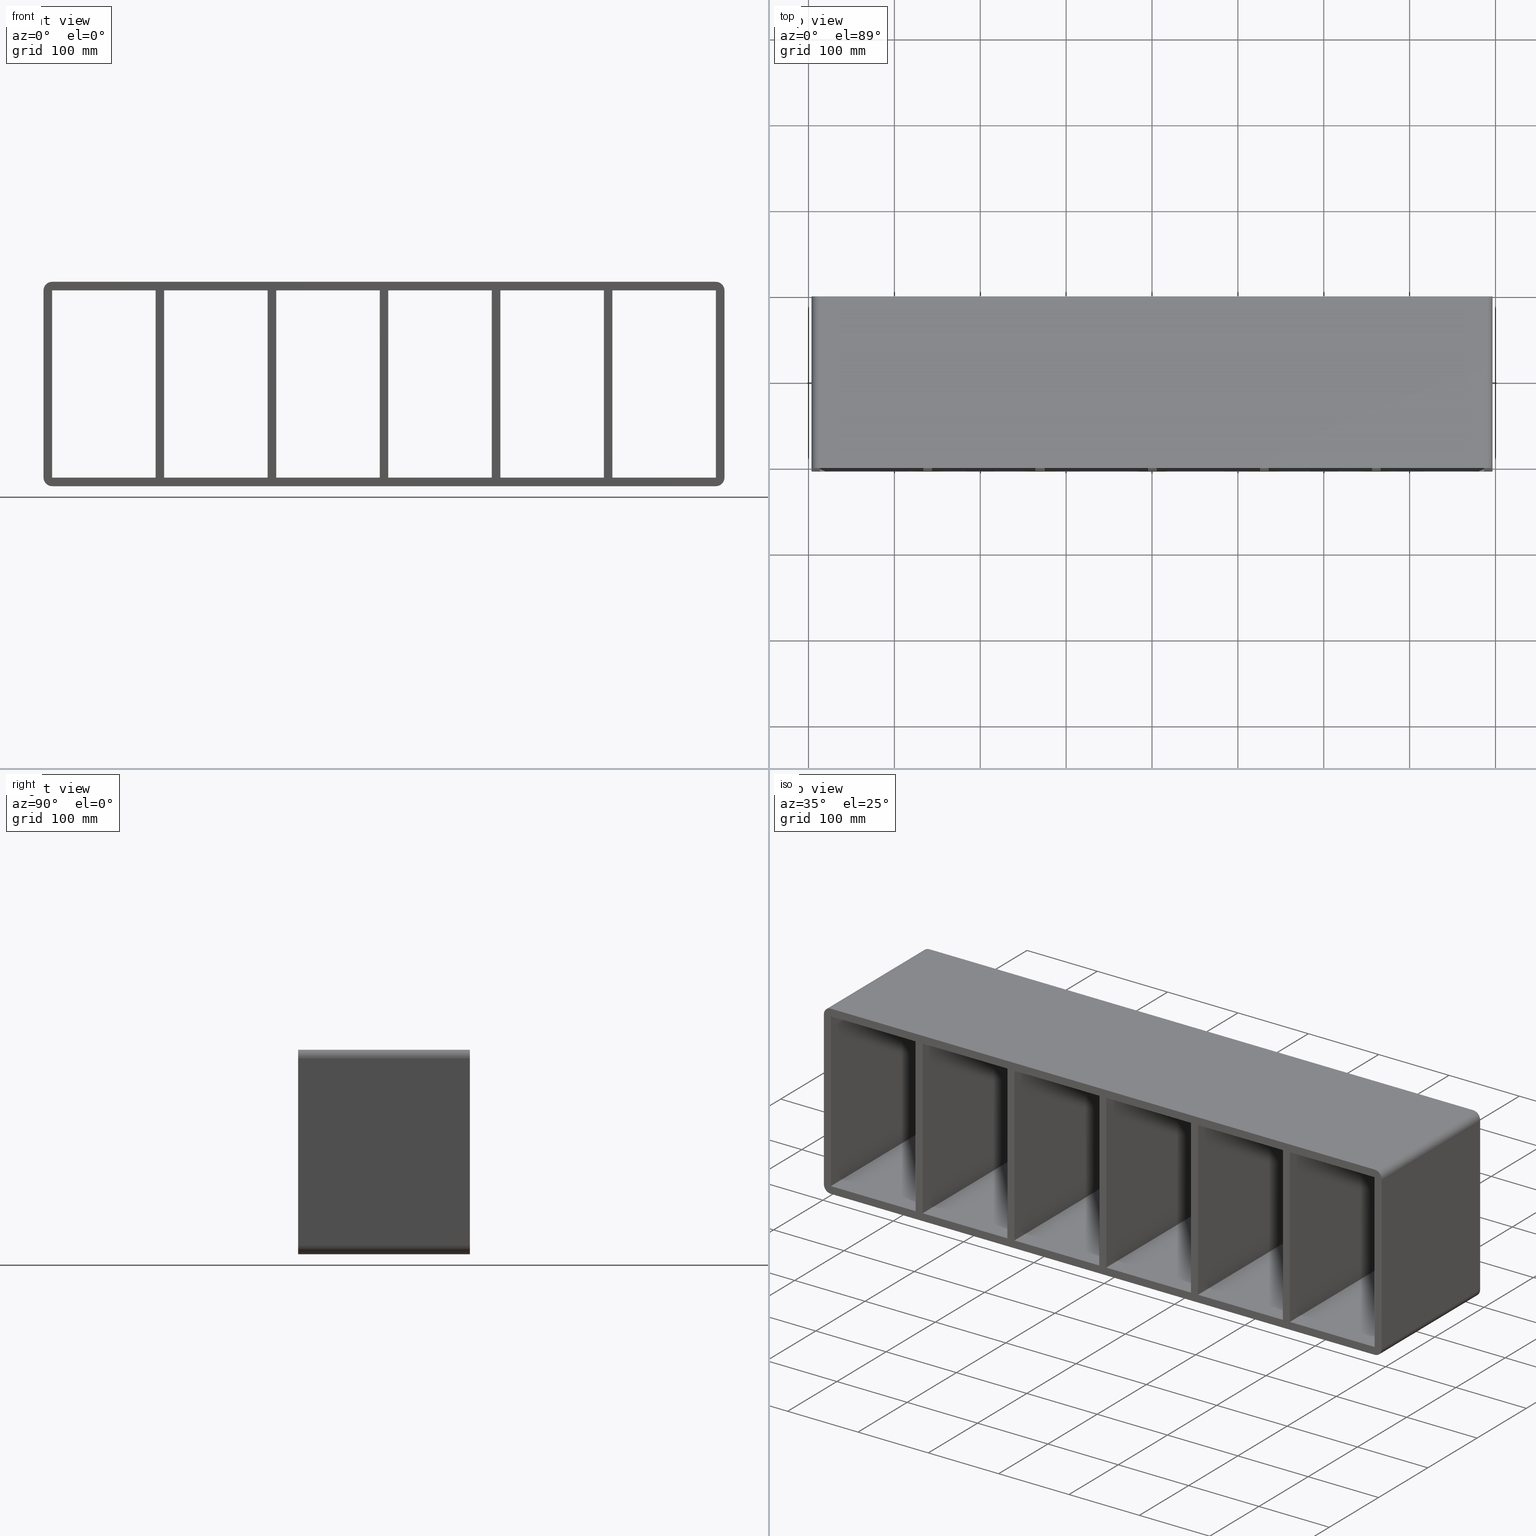
[diagram: canonical four-view strip — front | top / right | iso, engineering-drawing reading convention]
A machine part, canonical four-view strip (front | top / right | iso — engineering-drawing reading convention). The complete STEP part file that produces these views, byte-faithful:
ISO-10303-21;
HEADER;
/****************************************************************
 * Generated by software with PDElib inside                    *
 * PDElib Version v51a, created Wed 11/30/2011                  *
 * ITI Transcendata (http://www.transcendata.com/)              *
 ****************************************************************/
FILE_DESCRIPTION((''),'2;1');
FILE_NAME('C:\\RoxtecConfigurator\\CreatedFiles\\STEP\\SBTB6X6.stp','2013-02-26T13:25:47',(''),(''),'Autodesk Inventor 2013','Autodesk Inventor 2013','');
FILE_SCHEMA(('AUTOMOTIVE_DESIGN { 1 0 10303 214 1 1 1 1 }'));
ENDSEC;
DATA;
#5=APPLICATION_CONTEXT('automotive design');
#6=APPLICATION_PROTOCOL_DEFINITION('International Standard','automotive_design',2001,#5);
#7=PRODUCT_CONTEXT('',#5,'mechanical');
#8=PRODUCT('roxtec S_SF_G','roxtec S_SF_G',$,(#7));
#9=PRODUCT_RELATED_PRODUCT_CATEGORY('part',$,(#8));
#10=PRODUCT_DEFINITION_FORMATION('',$,#8);
#11=PRODUCT_DEFINITION_CONTEXT('part definition',#5,'design');
#12=PRODUCT_DEFINITION('',$,#10,#11);
#18=(NAMED_UNIT(*)PLANE_ANGLE_UNIT()SI_UNIT($,.RADIAN.));
#19=DIMENSIONAL_EXPONENTS(0.0,0.0,0.0,0.0,0.0,0.0,0.0);
#20=PLANE_ANGLE_MEASURE_WITH_UNIT(PLANE_ANGLE_MEASURE(0.0174532925),#18);
#24=(CONVERSION_BASED_UNIT('DEGREE',#20)NAMED_UNIT(#19)PLANE_ANGLE_UNIT());
#28=(NAMED_UNIT(*)SI_UNIT($,.STERADIAN.)SOLID_ANGLE_UNIT());
#32=(LENGTH_UNIT()NAMED_UNIT(*)SI_UNIT(.MILLI.,.METRE.));
#34=UNCERTAINTY_MEASURE_WITH_UNIT(LENGTH_MEASURE(0.01),#32,'DISTANCE_ACCURACY_VALUE','');
#36=(GEOMETRIC_REPRESENTATION_CONTEXT(3)GLOBAL_UNCERTAINTY_ASSIGNED_CONTEXT((#34))GLOBAL_UNIT_ASSIGNED_CONTEXT((#24,#28,#32))REPRESENTATION_CONTEXT('None','None'));
#37=AXIS2_PLACEMENT_3D('',#38,#39,#40);
#38=CARTESIAN_POINT('',(0.0,0.0,0.0));
#39=DIRECTION('',(0.0,0.0,1.0));
#40=DIRECTION('',(1.0,0.0,0.0));
#41=SHAPE_REPRESENTATION('',(#37),#36);
#42=PRODUCT_DEFINITION_SHAPE('','',#12);
#43=SHAPE_DEFINITION_REPRESENTATION(#42,#41);
#49=(NAMED_UNIT(*)PLANE_ANGLE_UNIT()SI_UNIT($,.RADIAN.));
#50=DIMENSIONAL_EXPONENTS(0.0,0.0,0.0,0.0,0.0,0.0,0.0);
#51=PLANE_ANGLE_MEASURE_WITH_UNIT(PLANE_ANGLE_MEASURE(0.0174532925),#49);
#55=(CONVERSION_BASED_UNIT('DEGREE',#51)NAMED_UNIT(#50)PLANE_ANGLE_UNIT());
#59=(NAMED_UNIT(*)SI_UNIT($,.STERADIAN.)SOLID_ANGLE_UNIT());
#63=(LENGTH_UNIT()NAMED_UNIT(*)SI_UNIT(.MILLI.,.METRE.));
#65=UNCERTAINTY_MEASURE_WITH_UNIT(LENGTH_MEASURE(0.000001),#63,'DISTANCE_ACCURACY_VALUE','');
#67=(GEOMETRIC_REPRESENTATION_CONTEXT(3)GLOBAL_UNCERTAINTY_ASSIGNED_CONTEXT((#65))GLOBAL_UNIT_ASSIGNED_CONTEXT((#55,#59,#63))REPRESENTATION_CONTEXT('','3D'));
#68=CARTESIAN_POINT('',(255.99999999999883,-3.0,-109.0));
#69=DIRECTION('',(-1.0,0.0,0.0));
#70=DIRECTION('',(0.0,0.0,1.0));
#71=AXIS2_PLACEMENT_3D('',#68,#69,#70);
#72=PLANE('',#71);
#73=CARTESIAN_POINT('',(255.99999999999883,-3.0,-109.0));
#74=VERTEX_POINT('',#73);
#75=CARTESIAN_POINT('',(255.99999999999878,-3.0,108.99999999999997));
#76=VERTEX_POINT('',#75);
#77=CARTESIAN_POINT('',(255.99999999999883,-3.0,-109.0));
#78=DIRECTION('',(0.0,0.0,1.0));
#79=VECTOR('',#78,217.99999999999997);
#80=LINE('',#77,#79);
#81=EDGE_CURVE('',#74,#76,#80,.T.);
#82=ORIENTED_EDGE('',*,*,#81,.T.);
#83=CARTESIAN_POINT('',(255.99999999999878,197.0,108.99999999999997));
#84=VERTEX_POINT('',#83);
#85=CARTESIAN_POINT('',(255.99999999999878,196.99999999999997,108.99999999999999));
#86=DIRECTION('',(0.0,-1.0,0.0));
#87=VECTOR('',#86,199.99999999999997);
#88=LINE('',#85,#87);
#89=EDGE_CURVE('',#84,#76,#88,.T.);
#90=ORIENTED_EDGE('',*,*,#89,.F.);
#91=CARTESIAN_POINT('',(255.99999999999883,197.0,-109.0));
#92=VERTEX_POINT('',#91);
#93=CARTESIAN_POINT('',(255.99999999999883,197.0,-109.0));
#94=DIRECTION('',(0.0,0.0,1.0));
#95=VECTOR('',#94,217.99999999999997);
#96=LINE('',#93,#95);
#97=EDGE_CURVE('',#92,#84,#96,.T.);
#98=ORIENTED_EDGE('',*,*,#97,.F.);
#99=CARTESIAN_POINT('',(255.99999999999881,-3.0,-109.0));
#100=DIRECTION('',(0.0,1.0,0.0));
#101=VECTOR('',#100,199.99999999999997);
#102=LINE('',#99,#101);
#103=EDGE_CURVE('',#74,#92,#102,.T.);
#104=ORIENTED_EDGE('',*,*,#103,.F.);
#105=EDGE_LOOP('',(#82,#90,#98,#104));
#106=FACE_OUTER_BOUND('',#105,.T.);
#107=ADVANCED_FACE('',(#106),#72,.T.);
#108=CARTESIAN_POINT('',(266.00000000001461,-3.0,108.99999999999997));
#109=DIRECTION('',(1.0,0.0,0.0));
#110=DIRECTION('',(0.0,0.0,-1.0));
#111=AXIS2_PLACEMENT_3D('',#108,#109,#110);
#112=PLANE('',#111);
#113=CARTESIAN_POINT('',(266.00000000001461,-3.0,108.99999999999997));
#114=VERTEX_POINT('',#113);
#115=CARTESIAN_POINT('',(266.00000000001461,-3.0,-108.99999999997137));
#116=VERTEX_POINT('',#115);
#117=CARTESIAN_POINT('',(266.00000000001461,-3.0,108.99999999999997));
#118=DIRECTION('',(0.0,0.0,-1.0));
#119=VECTOR('',#118,217.99999999997135);
#120=LINE('',#117,#119);
#121=EDGE_CURVE('',#114,#116,#120,.T.);
#122=ORIENTED_EDGE('',*,*,#121,.T.);
#123=CARTESIAN_POINT('',(266.00000000001461,197.0,-108.99999999997137));
#124=VERTEX_POINT('',#123);
#125=CARTESIAN_POINT('',(266.00000000001455,196.99999999999997,-109.0));
#126=DIRECTION('',(0.0,-1.0,0.0));
#127=VECTOR('',#126,199.99999999999997);
#128=LINE('',#125,#127);
#129=EDGE_CURVE('',#124,#116,#128,.T.);
#130=ORIENTED_EDGE('',*,*,#129,.F.);
#131=CARTESIAN_POINT('',(266.00000000001461,197.0,108.99999999999997));
#132=VERTEX_POINT('',#131);
#133=CARTESIAN_POINT('',(266.00000000001461,197.0,108.99999999999997));
#134=DIRECTION('',(0.0,0.0,-1.0));
#135=VECTOR('',#134,217.99999999997135);
#136=LINE('',#133,#135);
#137=EDGE_CURVE('',#132,#124,#136,.T.);
#138=ORIENTED_EDGE('',*,*,#137,.F.);
#139=CARTESIAN_POINT('',(266.00000000001455,-3.0,108.99999999999999));
#140=DIRECTION('',(0.0,1.0,0.0));
#141=VECTOR('',#140,199.99999999999997);
#142=LINE('',#139,#141);
#143=EDGE_CURVE('',#114,#132,#142,.T.);
#144=ORIENTED_EDGE('',*,*,#143,.F.);
#145=EDGE_LOOP('',(#122,#130,#138,#144));
#146=FACE_OUTER_BOUND('',#145,.T.);
#147=ADVANCED_FACE('',(#146),#112,.T.);
#148=CARTESIAN_POINT('',(125.49999999999883,-3.0,-109.0));
#149=DIRECTION('',(-1.0,0.0,0.0));
#150=DIRECTION('',(0.0,0.0,1.0));
#151=AXIS2_PLACEMENT_3D('',#148,#149,#150);
#152=PLANE('',#151);
#153=CARTESIAN_POINT('',(125.49999999999883,-3.0,-109.0));
#154=VERTEX_POINT('',#153);
#155=CARTESIAN_POINT('',(125.49999999999876,-3.0,108.99999999999997));
#156=VERTEX_POINT('',#155);
#157=CARTESIAN_POINT('',(125.49999999999883,-3.0,-109.0));
#158=DIRECTION('',(0.0,0.0,1.0));
#159=VECTOR('',#158,217.99999999999997);
#160=LINE('',#157,#159);
#161=EDGE_CURVE('',#154,#156,#160,.T.);
#162=ORIENTED_EDGE('',*,*,#161,.T.);
#163=CARTESIAN_POINT('',(125.49999999999876,197.0,108.99999999999997));
#164=VERTEX_POINT('',#163);
#165=CARTESIAN_POINT('',(125.49999999999876,196.99999999999997,108.99999999999999));
#166=DIRECTION('',(0.0,-1.0,0.0));
#167=VECTOR('',#166,199.99999999999997);
#168=LINE('',#165,#167);
#169=EDGE_CURVE('',#164,#156,#168,.T.);
#170=ORIENTED_EDGE('',*,*,#169,.F.);
#171=CARTESIAN_POINT('',(125.49999999999883,197.0,-109.0));
#172=VERTEX_POINT('',#171);
#173=CARTESIAN_POINT('',(125.49999999999883,197.0,-109.0));
#174=DIRECTION('',(0.0,0.0,1.0));
#175=VECTOR('',#174,217.99999999999997);
#176=LINE('',#173,#175);
#177=EDGE_CURVE('',#172,#164,#176,.T.);
#178=ORIENTED_EDGE('',*,*,#177,.F.);
#179=CARTESIAN_POINT('',(125.49999999999883,-3.0,-109.0));
#180=DIRECTION('',(0.0,1.0,0.0));
#181=VECTOR('',#180,199.99999999999997);
#182=LINE('',#179,#181);
#183=EDGE_CURVE('',#154,#172,#182,.T.);
#184=ORIENTED_EDGE('',*,*,#183,.F.);
#185=EDGE_LOOP('',(#162,#170,#178,#184));
#186=FACE_OUTER_BOUND('',#185,.T.);
#187=ADVANCED_FACE('',(#186),#152,.T.);
#188=CARTESIAN_POINT('',(135.50000000001461,-3.0,108.99999999999997));
#189=DIRECTION('',(1.0,0.0,0.0));
#190=DIRECTION('',(0.0,0.0,-1.0));
#191=AXIS2_PLACEMENT_3D('',#188,#189,#190);
#192=PLANE('',#191);
#193=CARTESIAN_POINT('',(135.50000000001461,-3.0,108.99999999999997));
#194=VERTEX_POINT('',#193);
#195=CARTESIAN_POINT('',(135.50000000001461,-3.0,-108.99999999997137));
#196=VERTEX_POINT('',#195);
#197=CARTESIAN_POINT('',(135.50000000001461,-3.0,108.99999999999997));
#198=DIRECTION('',(0.0,0.0,-1.0));
#199=VECTOR('',#198,217.99999999997135);
#200=LINE('',#197,#199);
#201=EDGE_CURVE('',#194,#196,#200,.T.);
#202=ORIENTED_EDGE('',*,*,#201,.T.);
#203=CARTESIAN_POINT('',(135.50000000001461,197.0,-108.99999999997137));
#204=VERTEX_POINT('',#203);
#205=CARTESIAN_POINT('',(135.50000000001461,196.99999999999997,-109.0));
#206=DIRECTION('',(0.0,-1.0,0.0));
#207=VECTOR('',#206,199.99999999999997);
#208=LINE('',#205,#207);
#209=EDGE_CURVE('',#204,#196,#208,.T.);
#210=ORIENTED_EDGE('',*,*,#209,.F.);
#211=CARTESIAN_POINT('',(135.50000000001461,197.0,108.99999999999997));
#212=VERTEX_POINT('',#211);
#213=CARTESIAN_POINT('',(135.50000000001461,197.0,108.99999999999997));
#214=DIRECTION('',(0.0,0.0,-1.0));
#215=VECTOR('',#214,217.99999999997135);
#216=LINE('',#213,#215);
#217=EDGE_CURVE('',#212,#204,#216,.T.);
#218=ORIENTED_EDGE('',*,*,#217,.F.);
#219=CARTESIAN_POINT('',(135.50000000001461,-3.0,108.99999999999999));
#220=DIRECTION('',(0.0,1.0,0.0));
#221=VECTOR('',#220,199.99999999999997);
#222=LINE('',#219,#221);
#223=EDGE_CURVE('',#194,#212,#222,.T.);
#224=ORIENTED_EDGE('',*,*,#223,.F.);
#225=EDGE_LOOP('',(#202,#210,#218,#224));
#226=FACE_OUTER_BOUND('',#225,.T.);
#227=ADVANCED_FACE('',(#226),#192,.T.);
#228=CARTESIAN_POINT('',(-5.000000000001208,-3.0,-109.0));
#229=DIRECTION('',(-1.0,0.0,0.0));
#230=DIRECTION('',(0.0,0.0,1.0));
#231=AXIS2_PLACEMENT_3D('',#228,#229,#230);
#232=PLANE('',#231);
#233=CARTESIAN_POINT('',(-5.000000000001208,-3.0,-109.0));
#234=VERTEX_POINT('',#233);
#235=CARTESIAN_POINT('',(-5.000000000001279,-3.0,108.99999999999997));
#236=VERTEX_POINT('',#235);
#237=CARTESIAN_POINT('',(-5.000000000001208,-3.0,-109.0));
#238=DIRECTION('',(0.0,0.0,1.0));
#239=VECTOR('',#238,217.99999999999997);
#240=LINE('',#237,#239);
#241=EDGE_CURVE('',#234,#236,#240,.T.);
#242=ORIENTED_EDGE('',*,*,#241,.T.);
#243=CARTESIAN_POINT('',(-5.000000000001279,197.0,108.99999999999997));
#244=VERTEX_POINT('',#243);
#245=CARTESIAN_POINT('',(-5.000000000001279,196.99999999999997,108.99999999999999));
#246=DIRECTION('',(0.0,-1.0,0.0));
#247=VECTOR('',#246,199.99999999999997);
#248=LINE('',#245,#247);
#249=EDGE_CURVE('',#244,#236,#248,.T.);
#250=ORIENTED_EDGE('',*,*,#249,.F.);
#251=CARTESIAN_POINT('',(-5.000000000001208,197.0,-109.0));
#252=VERTEX_POINT('',#251);
#253=CARTESIAN_POINT('',(-5.000000000001208,197.0,-109.0));
#254=DIRECTION('',(0.0,0.0,1.0));
#255=VECTOR('',#254,217.99999999999997);
#256=LINE('',#253,#255);
#257=EDGE_CURVE('',#252,#244,#256,.T.);
#258=ORIENTED_EDGE('',*,*,#257,.F.);
#259=CARTESIAN_POINT('',(-5.000000000001208,-3.0,-109.0));
#260=DIRECTION('',(0.0,1.0,0.0));
#261=VECTOR('',#260,199.99999999999997);
#262=LINE('',#259,#261);
#263=EDGE_CURVE('',#234,#252,#262,.T.);
#264=ORIENTED_EDGE('',*,*,#263,.F.);
#265=EDGE_LOOP('',(#242,#250,#258,#264));
#266=FACE_OUTER_BOUND('',#265,.T.);
#267=ADVANCED_FACE('',(#266),#232,.T.);
#268=CARTESIAN_POINT('',(5.000000000014566,-3.0,108.99999999999997));
#269=DIRECTION('',(1.0,0.0,0.0));
#270=DIRECTION('',(0.0,0.0,-1.0));
#271=AXIS2_PLACEMENT_3D('',#268,#269,#270);
#272=PLANE('',#271);
#273=CARTESIAN_POINT('',(5.000000000014566,-3.0,108.99999999999997));
#274=VERTEX_POINT('',#273);
#275=CARTESIAN_POINT('',(5.000000000014566,-3.0,-108.99999999997137));
#276=VERTEX_POINT('',#275);
#277=CARTESIAN_POINT('',(5.000000000014566,-3.0,108.99999999999997));
#278=DIRECTION('',(0.0,0.0,-1.0));
#279=VECTOR('',#278,217.99999999997135);
#280=LINE('',#277,#279);
#281=EDGE_CURVE('',#274,#276,#280,.T.);
#282=ORIENTED_EDGE('',*,*,#281,.T.);
#283=CARTESIAN_POINT('',(5.000000000014566,197.0,-108.99999999997137));
#284=VERTEX_POINT('',#283);
#285=CARTESIAN_POINT('',(5.000000000014566,196.99999999999997,-109.0));
#286=DIRECTION('',(0.0,-1.0,0.0));
#287=VECTOR('',#286,199.99999999999997);
#288=LINE('',#285,#287);
#289=EDGE_CURVE('',#284,#276,#288,.T.);
#290=ORIENTED_EDGE('',*,*,#289,.F.);
#291=CARTESIAN_POINT('',(5.000000000014566,197.0,108.99999999999997));
#292=VERTEX_POINT('',#291);
#293=CARTESIAN_POINT('',(5.000000000014566,197.0,108.99999999999997));
#294=DIRECTION('',(0.0,0.0,-1.0));
#295=VECTOR('',#294,217.99999999997135);
#296=LINE('',#293,#295);
#297=EDGE_CURVE('',#292,#284,#296,.T.);
#298=ORIENTED_EDGE('',*,*,#297,.F.);
#299=CARTESIAN_POINT('',(5.000000000014566,-3.0,108.99999999999999));
#300=DIRECTION('',(0.0,1.0,0.0));
#301=VECTOR('',#300,199.99999999999997);
#302=LINE('',#299,#301);
#303=EDGE_CURVE('',#274,#292,#302,.T.);
#304=ORIENTED_EDGE('',*,*,#303,.F.);
#305=EDGE_LOOP('',(#282,#290,#298,#304));
#306=FACE_OUTER_BOUND('',#305,.T.);
#307=ADVANCED_FACE('',(#306),#272,.T.);
#308=CARTESIAN_POINT('',(-135.50000000000122,-3.0,-109.0));
#309=DIRECTION('',(-1.0,0.0,0.0));
#310=DIRECTION('',(0.0,0.0,1.0));
#311=AXIS2_PLACEMENT_3D('',#308,#309,#310);
#312=PLANE('',#311);
#313=CARTESIAN_POINT('',(-135.50000000000122,-3.0,-109.0));
#314=VERTEX_POINT('',#313);
#315=CARTESIAN_POINT('',(-135.50000000000128,-3.0,108.99999999999997));
#316=VERTEX_POINT('',#315);
#317=CARTESIAN_POINT('',(-135.50000000000122,-3.0,-109.0));
#318=DIRECTION('',(0.0,0.0,1.0));
#319=VECTOR('',#318,217.99999999999997);
#320=LINE('',#317,#319);
#321=EDGE_CURVE('',#314,#316,#320,.T.);
#322=ORIENTED_EDGE('',*,*,#321,.T.);
#323=CARTESIAN_POINT('',(-135.50000000000128,197.0,108.99999999999997));
#324=VERTEX_POINT('',#323);
#325=CARTESIAN_POINT('',(-135.50000000000131,196.99999999999997,108.99999999999999));
#326=DIRECTION('',(0.0,-1.0,0.0));
#327=VECTOR('',#326,199.99999999999997);
#328=LINE('',#325,#327);
#329=EDGE_CURVE('',#324,#316,#328,.T.);
#330=ORIENTED_EDGE('',*,*,#329,.F.);
#331=CARTESIAN_POINT('',(-135.50000000000122,197.0,-109.0));
#332=VERTEX_POINT('',#331);
#333=CARTESIAN_POINT('',(-135.50000000000122,197.0,-109.0));
#334=DIRECTION('',(0.0,0.0,1.0));
#335=VECTOR('',#334,217.99999999999997);
#336=LINE('',#333,#335);
#337=EDGE_CURVE('',#332,#324,#336,.T.);
#338=ORIENTED_EDGE('',*,*,#337,.F.);
#339=CARTESIAN_POINT('',(-135.50000000000122,-3.0,-109.0));
#340=DIRECTION('',(0.0,1.0,0.0));
#341=VECTOR('',#340,199.99999999999997);
#342=LINE('',#339,#341);
#343=EDGE_CURVE('',#314,#332,#342,.T.);
#344=ORIENTED_EDGE('',*,*,#343,.F.);
#345=EDGE_LOOP('',(#322,#330,#338,#344));
#346=FACE_OUTER_BOUND('',#345,.T.);
#347=ADVANCED_FACE('',(#346),#312,.T.);
#348=CARTESIAN_POINT('',(-125.49999999998545,-3.0,108.99999999999997));
#349=DIRECTION('',(1.0,0.0,0.0));
#350=DIRECTION('',(0.0,0.0,-1.0));
#351=AXIS2_PLACEMENT_3D('',#348,#349,#350);
#352=PLANE('',#351);
#353=CARTESIAN_POINT('',(-125.49999999998545,-3.0,108.99999999999997));
#354=VERTEX_POINT('',#353);
#355=CARTESIAN_POINT('',(-125.49999999998545,-3.0,-108.99999999997137));
#356=VERTEX_POINT('',#355);
#357=CARTESIAN_POINT('',(-125.49999999998545,-3.0,108.99999999999997));
#358=DIRECTION('',(0.0,0.0,-1.0));
#359=VECTOR('',#358,217.99999999997135);
#360=LINE('',#357,#359);
#361=EDGE_CURVE('',#354,#356,#360,.T.);
#362=ORIENTED_EDGE('',*,*,#361,.T.);
#363=CARTESIAN_POINT('',(-125.49999999998545,197.0,-108.99999999997137));
#364=VERTEX_POINT('',#363);
#365=CARTESIAN_POINT('',(-125.49999999998546,196.99999999999997,-109.0));
#366=DIRECTION('',(0.0,-1.0,0.0));
#367=VECTOR('',#366,199.99999999999997);
#368=LINE('',#365,#367);
#369=EDGE_CURVE('',#364,#356,#368,.T.);
#370=ORIENTED_EDGE('',*,*,#369,.F.);
#371=CARTESIAN_POINT('',(-125.49999999998545,197.0,108.99999999999997));
#372=VERTEX_POINT('',#371);
#373=CARTESIAN_POINT('',(-125.49999999998545,197.0,108.99999999999997));
#374=DIRECTION('',(0.0,0.0,-1.0));
#375=VECTOR('',#374,217.99999999997135);
#376=LINE('',#373,#375);
#377=EDGE_CURVE('',#372,#364,#376,.T.);
#378=ORIENTED_EDGE('',*,*,#377,.F.);
#379=CARTESIAN_POINT('',(-125.49999999998546,-3.0,108.99999999999999));
#380=DIRECTION('',(0.0,1.0,0.0));
#381=VECTOR('',#380,199.99999999999997);
#382=LINE('',#379,#381);
#383=EDGE_CURVE('',#354,#372,#382,.T.);
#384=ORIENTED_EDGE('',*,*,#383,.F.);
#385=EDGE_LOOP('',(#362,#370,#378,#384));
#386=FACE_OUTER_BOUND('',#385,.T.);
#387=ADVANCED_FACE('',(#386),#352,.T.);
#388=CARTESIAN_POINT('',(386.50000000000006,0.0,-109.0));
#389=DIRECTION('',(0.0,0.0,-1.0));
#390=DIRECTION('',(-1.0,0.0,0.0));
#391=AXIS2_PLACEMENT_3D('',#388,#389,#390);
#392=PLANE('',#391);
#393=ORIENTED_EDGE('',*,*,#343,.T.);
#394=CARTESIAN_POINT('',(-255.99999999998545,197.0,-108.99999999997137));
#395=VERTEX_POINT('',#394);
#396=CARTESIAN_POINT('',(-255.99999999998542,197.0,-109.0));
#397=DIRECTION('',(1.0,0.0,0.0));
#398=VECTOR('',#397,120.4999999999842);
#399=LINE('',#396,#398);
#400=EDGE_CURVE('',#395,#332,#399,.T.);
#401=ORIENTED_EDGE('',*,*,#400,.F.);
#402=CARTESIAN_POINT('',(-255.99999999998545,-3.0,-108.99999999997137));
#403=VERTEX_POINT('',#402);
#404=CARTESIAN_POINT('',(-255.99999999998545,196.99999999999997,-109.0));
#405=DIRECTION('',(0.0,-1.0,0.0));
#406=VECTOR('',#405,199.99999999999997);
#407=LINE('',#404,#406);
#408=EDGE_CURVE('',#395,#403,#407,.T.);
#409=ORIENTED_EDGE('',*,*,#408,.T.);
#410=CARTESIAN_POINT('',(-135.50000000000122,-3.0,-109.0));
#411=DIRECTION('',(-1.0,0.0,0.0));
#412=VECTOR('',#411,120.4999999999842);
#413=LINE('',#410,#412);
#414=EDGE_CURVE('',#314,#403,#413,.T.);
#415=ORIENTED_EDGE('',*,*,#414,.F.);
#416=EDGE_LOOP('',(#393,#401,#409,#415));
#417=FACE_OUTER_BOUND('',#416,.T.);
#418=ADVANCED_FACE('',(#417),#392,.F.);
#419=CARTESIAN_POINT('',(386.50000000000006,0.0,-109.0));
#420=DIRECTION('',(0.0,0.0,-1.0));
#421=DIRECTION('',(-1.0,0.0,0.0));
#422=AXIS2_PLACEMENT_3D('',#419,#420,#421);
#423=PLANE('',#422);
#424=ORIENTED_EDGE('',*,*,#263,.T.);
#425=CARTESIAN_POINT('',(-125.49999999998542,197.0,-109.0));
#426=DIRECTION('',(1.0,0.0,0.0));
#427=VECTOR('',#426,120.4999999999842);
#428=LINE('',#425,#427);
#429=EDGE_CURVE('',#364,#252,#428,.T.);
#430=ORIENTED_EDGE('',*,*,#429,.F.);
#431=ORIENTED_EDGE('',*,*,#369,.T.);
#432=CARTESIAN_POINT('',(-5.000000000001222,-3.0,-109.0));
#433=DIRECTION('',(-1.0,0.0,0.0));
#434=VECTOR('',#433,120.4999999999842);
#435=LINE('',#432,#434);
#436=EDGE_CURVE('',#234,#356,#435,.T.);
#437=ORIENTED_EDGE('',*,*,#436,.F.);
#438=EDGE_LOOP('',(#424,#430,#431,#437));
#439=FACE_OUTER_BOUND('',#438,.T.);
#440=ADVANCED_FACE('',(#439),#423,.F.);
#441=CARTESIAN_POINT('',(386.50000000000006,0.0,-109.0));
#442=DIRECTION('',(0.0,0.0,-1.0));
#443=DIRECTION('',(-1.0,0.0,0.0));
#444=AXIS2_PLACEMENT_3D('',#441,#442,#443);
#445=PLANE('',#444);
#446=ORIENTED_EDGE('',*,*,#183,.T.);
#447=CARTESIAN_POINT('',(5.00000000001458,197.0,-109.0));
#448=DIRECTION('',(1.0,0.0,0.0));
#449=VECTOR('',#448,120.49999999998425);
#450=LINE('',#447,#449);
#451=EDGE_CURVE('',#284,#172,#450,.T.);
#452=ORIENTED_EDGE('',*,*,#451,.F.);
#453=ORIENTED_EDGE('',*,*,#289,.T.);
#454=CARTESIAN_POINT('',(125.49999999999883,-3.0,-109.0));
#455=DIRECTION('',(-1.0,0.0,0.0));
#456=VECTOR('',#455,120.49999999998425);
#457=LINE('',#454,#456);
#458=EDGE_CURVE('',#154,#276,#457,.T.);
#459=ORIENTED_EDGE('',*,*,#458,.F.);
#460=EDGE_LOOP('',(#446,#452,#453,#459));
#461=FACE_OUTER_BOUND('',#460,.T.);
#462=ADVANCED_FACE('',(#461),#445,.F.);
#463=CARTESIAN_POINT('',(386.50000000000006,0.0,-109.0));
#464=DIRECTION('',(0.0,0.0,-1.0));
#465=DIRECTION('',(-1.0,0.0,0.0));
#466=AXIS2_PLACEMENT_3D('',#463,#464,#465);
#467=PLANE('',#466);
#468=ORIENTED_EDGE('',*,*,#103,.T.);
#469=CARTESIAN_POINT('',(135.50000000001461,197.0,-109.0));
#470=DIRECTION('',(1.0,0.0,0.0));
#471=VECTOR('',#470,120.49999999998423);
#472=LINE('',#469,#471);
#473=EDGE_CURVE('',#204,#92,#472,.T.);
#474=ORIENTED_EDGE('',*,*,#473,.F.);
#475=ORIENTED_EDGE('',*,*,#209,.T.);
#476=CARTESIAN_POINT('',(255.99999999999883,-3.0,-109.0));
#477=DIRECTION('',(-1.0,0.0,0.0));
#478=VECTOR('',#477,120.49999999998423);
#479=LINE('',#476,#478);
#480=EDGE_CURVE('',#74,#196,#479,.T.);
#481=ORIENTED_EDGE('',*,*,#480,.F.);
#482=EDGE_LOOP('',(#468,#474,#475,#481));
#483=FACE_OUTER_BOUND('',#482,.T.);
#484=ADVANCED_FACE('',(#483),#467,.F.);
#485=CARTESIAN_POINT('',(386.50000000000006,0.0,-109.0));
#486=DIRECTION('',(0.0,0.0,-1.0));
#487=DIRECTION('',(-1.0,0.0,0.0));
#488=AXIS2_PLACEMENT_3D('',#485,#486,#487);
#489=PLANE('',#488);
#490=ORIENTED_EDGE('',*,*,#129,.T.);
#491=CARTESIAN_POINT('',(386.50000000000006,-3.0,-109.0));
#492=VERTEX_POINT('',#491);
#493=CARTESIAN_POINT('',(386.50000000000006,-3.0,-109.0));
#494=DIRECTION('',(-1.0,0.0,0.0));
#495=VECTOR('',#494,120.49999999998545);
#496=LINE('',#493,#495);
#497=EDGE_CURVE('',#492,#116,#496,.T.);
#498=ORIENTED_EDGE('',*,*,#497,.F.);
#499=CARTESIAN_POINT('',(386.50000000000006,197.0,-109.0));
#500=VERTEX_POINT('',#499);
#501=CARTESIAN_POINT('',(386.50000000000006,197.0,-109.0));
#502=DIRECTION('',(0.0,-1.0,0.0));
#503=VECTOR('',#502,200.0);
#504=LINE('',#501,#503);
#505=EDGE_CURVE('',#500,#492,#504,.T.);
#506=ORIENTED_EDGE('',*,*,#505,.F.);
#507=CARTESIAN_POINT('',(266.00000000001461,197.0,-109.0));
#508=DIRECTION('',(1.0,0.0,0.0));
#509=VECTOR('',#508,120.49999999998545);
#510=LINE('',#507,#509);
#511=EDGE_CURVE('',#124,#500,#510,.T.);
#512=ORIENTED_EDGE('',*,*,#511,.F.);
#513=EDGE_LOOP('',(#490,#498,#506,#512));
#514=FACE_OUTER_BOUND('',#513,.T.);
#515=ADVANCED_FACE('',(#514),#489,.F.);
#516=CARTESIAN_POINT('',(-386.50000000000006,0.0,108.99999999999999));
#517=DIRECTION('',(0.0,0.0,1.0));
#518=DIRECTION('',(1.0,0.0,0.0));
#519=AXIS2_PLACEMENT_3D('',#516,#517,#518);
#520=PLANE('',#519);
#521=ORIENTED_EDGE('',*,*,#329,.T.);
#522=CARTESIAN_POINT('',(-255.99999999998545,-3.0,108.99999999999997));
#523=VERTEX_POINT('',#522);
#524=CARTESIAN_POINT('',(-255.99999999998545,-3.0,108.99999999999999));
#525=DIRECTION('',(1.0,0.0,0.0));
#526=VECTOR('',#525,120.49999999998417);
#527=LINE('',#524,#526);
#528=EDGE_CURVE('',#523,#316,#527,.T.);
#529=ORIENTED_EDGE('',*,*,#528,.F.);
#530=CARTESIAN_POINT('',(-255.99999999998545,197.0,108.99999999999997));
#531=VERTEX_POINT('',#530);
#532=CARTESIAN_POINT('',(-255.99999999998545,-3.0,108.99999999999999));
#533=DIRECTION('',(0.0,1.0,0.0));
#534=VECTOR('',#533,199.99999999999997);
#535=LINE('',#532,#534);
#536=EDGE_CURVE('',#523,#531,#535,.T.);
#537=ORIENTED_EDGE('',*,*,#536,.T.);
#538=CARTESIAN_POINT('',(-135.50000000000128,197.0,108.99999999999999));
#539=DIRECTION('',(-1.0,0.0,0.0));
#540=VECTOR('',#539,120.49999999998417);
#541=LINE('',#538,#540);
#542=EDGE_CURVE('',#324,#531,#541,.T.);
#543=ORIENTED_EDGE('',*,*,#542,.F.);
#544=EDGE_LOOP('',(#521,#529,#537,#543));
#545=FACE_OUTER_BOUND('',#544,.T.);
#546=ADVANCED_FACE('',(#545),#520,.F.);
#547=CARTESIAN_POINT('',(-386.50000000000006,0.0,108.99999999999999));
#548=DIRECTION('',(0.0,0.0,1.0));
#549=DIRECTION('',(1.0,0.0,0.0));
#550=AXIS2_PLACEMENT_3D('',#547,#548,#549);
#551=PLANE('',#550);
#552=ORIENTED_EDGE('',*,*,#249,.T.);
#553=CARTESIAN_POINT('',(-125.49999999998545,-3.0,108.99999999999999));
#554=DIRECTION('',(1.0,0.0,0.0));
#555=VECTOR('',#554,120.49999999998417);
#556=LINE('',#553,#555);
#557=EDGE_CURVE('',#354,#236,#556,.T.);
#558=ORIENTED_EDGE('',*,*,#557,.F.);
#559=ORIENTED_EDGE('',*,*,#383,.T.);
#560=CARTESIAN_POINT('',(-5.000000000001279,197.0,108.99999999999999));
#561=DIRECTION('',(-1.0,0.0,0.0));
#562=VECTOR('',#561,120.49999999998417);
#563=LINE('',#560,#562);
#564=EDGE_CURVE('',#244,#372,#563,.T.);
#565=ORIENTED_EDGE('',*,*,#564,.F.);
#566=EDGE_LOOP('',(#552,#558,#559,#565));
#567=FACE_OUTER_BOUND('',#566,.T.);
#568=ADVANCED_FACE('',(#567),#551,.F.);
#569=CARTESIAN_POINT('',(-386.50000000000006,0.0,108.99999999999999));
#570=DIRECTION('',(0.0,0.0,1.0));
#571=DIRECTION('',(1.0,0.0,0.0));
#572=AXIS2_PLACEMENT_3D('',#569,#570,#571);
#573=PLANE('',#572);
#574=ORIENTED_EDGE('',*,*,#169,.T.);
#575=CARTESIAN_POINT('',(5.00000000001458,-3.0,108.99999999999999));
#576=DIRECTION('',(1.0,0.0,0.0));
#577=VECTOR('',#576,120.4999999999842);
#578=LINE('',#575,#577);
#579=EDGE_CURVE('',#274,#156,#578,.T.);
#580=ORIENTED_EDGE('',*,*,#579,.F.);
#581=ORIENTED_EDGE('',*,*,#303,.T.);
#582=CARTESIAN_POINT('',(125.49999999999878,197.0,108.99999999999999));
#583=DIRECTION('',(-1.0,0.0,0.0));
#584=VECTOR('',#583,120.4999999999842);
#585=LINE('',#582,#584);
#586=EDGE_CURVE('',#164,#292,#585,.T.);
#587=ORIENTED_EDGE('',*,*,#586,.F.);
#588=EDGE_LOOP('',(#574,#580,#581,#587));
#589=FACE_OUTER_BOUND('',#588,.T.);
#590=ADVANCED_FACE('',(#589),#573,.F.);
#591=CARTESIAN_POINT('',(-386.50000000000006,0.0,108.99999999999999));
#592=DIRECTION('',(0.0,0.0,1.0));
#593=DIRECTION('',(1.0,0.0,0.0));
#594=AXIS2_PLACEMENT_3D('',#591,#592,#593);
#595=PLANE('',#594);
#596=ORIENTED_EDGE('',*,*,#143,.T.);
#597=CARTESIAN_POINT('',(386.50000000000006,197.0,108.99999999999997));
#598=VERTEX_POINT('',#597);
#599=CARTESIAN_POINT('',(386.50000000000011,197.0,108.99999999999999));
#600=DIRECTION('',(-1.0,0.0,0.0));
#601=VECTOR('',#600,120.49999999998556);
#602=LINE('',#599,#601);
#603=EDGE_CURVE('',#598,#132,#602,.T.);
#604=ORIENTED_EDGE('',*,*,#603,.F.);
#605=CARTESIAN_POINT('',(386.50000000000006,-3.0,108.99999999999997));
#606=VERTEX_POINT('',#605);
#607=CARTESIAN_POINT('',(386.50000000000006,-3.0,108.99999999999999));
#608=DIRECTION('',(0.0,1.0,0.0));
#609=VECTOR('',#608,200.0);
#610=LINE('',#607,#609);
#611=EDGE_CURVE('',#606,#598,#610,.T.);
#612=ORIENTED_EDGE('',*,*,#611,.F.);
#613=CARTESIAN_POINT('',(266.00000000001455,-3.0,108.99999999999999));
#614=DIRECTION('',(1.0,0.0,0.0));
#615=VECTOR('',#614,120.49999999998556);
#616=LINE('',#613,#615);
#617=EDGE_CURVE('',#114,#606,#616,.T.);
#618=ORIENTED_EDGE('',*,*,#617,.F.);
#619=EDGE_LOOP('',(#596,#604,#612,#618));
#620=FACE_OUTER_BOUND('',#619,.T.);
#621=ADVANCED_FACE('',(#620),#595,.F.);
#622=CARTESIAN_POINT('',(-386.50000000000006,0.0,108.99999999999999));
#623=DIRECTION('',(0.0,0.0,1.0));
#624=DIRECTION('',(1.0,0.0,0.0));
#625=AXIS2_PLACEMENT_3D('',#622,#623,#624);
#626=PLANE('',#625);
#627=ORIENTED_EDGE('',*,*,#89,.T.);
#628=CARTESIAN_POINT('',(135.50000000001464,-3.0,108.99999999999999));
#629=DIRECTION('',(1.0,0.0,0.0));
#630=VECTOR('',#629,120.4999999999842);
#631=LINE('',#628,#630);
#632=EDGE_CURVE('',#194,#76,#631,.T.);
#633=ORIENTED_EDGE('',*,*,#632,.F.);
#634=ORIENTED_EDGE('',*,*,#223,.T.);
#635=CARTESIAN_POINT('',(255.99999999999883,197.0,108.99999999999999));
#636=DIRECTION('',(-1.0,0.0,0.0));
#637=VECTOR('',#636,120.4999999999842);
#638=LINE('',#635,#637);
#639=EDGE_CURVE('',#84,#212,#638,.T.);
#640=ORIENTED_EDGE('',*,*,#639,.F.);
#641=EDGE_LOOP('',(#627,#633,#634,#640));
#642=FACE_OUTER_BOUND('',#641,.T.);
#643=ADVANCED_FACE('',(#642),#626,.F.);
#644=CARTESIAN_POINT('',(-266.00000000000125,-3.0,-109.0));
#645=DIRECTION('',(-1.0,0.0,0.0));
#646=DIRECTION('',(0.0,0.0,1.0));
#647=AXIS2_PLACEMENT_3D('',#644,#645,#646);
#648=PLANE('',#647);
#649=CARTESIAN_POINT('',(-266.00000000000125,-3.0,-109.0));
#650=VERTEX_POINT('',#649);
#651=CARTESIAN_POINT('',(-266.00000000000131,-3.0,108.99999999999997));
#652=VERTEX_POINT('',#651);
#653=CARTESIAN_POINT('',(-266.00000000000125,-3.0,-109.0));
#654=DIRECTION('',(0.0,0.0,1.0));
#655=VECTOR('',#654,217.99999999999997);
#656=LINE('',#653,#655);
#657=EDGE_CURVE('',#650,#652,#656,.T.);
#658=ORIENTED_EDGE('',*,*,#657,.T.);
#659=CARTESIAN_POINT('',(-266.00000000000131,197.0,108.99999999999997));
#660=VERTEX_POINT('',#659);
#661=CARTESIAN_POINT('',(-266.00000000000131,196.99999999999997,108.99999999999999));
#662=DIRECTION('',(0.0,-1.0,0.0));
#663=VECTOR('',#662,199.99999999999997);
#664=LINE('',#661,#663);
#665=EDGE_CURVE('',#660,#652,#664,.T.);
#666=ORIENTED_EDGE('',*,*,#665,.F.);
#667=CARTESIAN_POINT('',(-266.00000000000125,197.0,-109.0));
#668=VERTEX_POINT('',#667);
#669=CARTESIAN_POINT('',(-266.00000000000125,197.0,-109.0));
#670=DIRECTION('',(0.0,0.0,1.0));
#671=VECTOR('',#670,217.99999999999997);
#672=LINE('',#669,#671);
#673=EDGE_CURVE('',#668,#660,#672,.T.);
#674=ORIENTED_EDGE('',*,*,#673,.F.);
#675=CARTESIAN_POINT('',(-266.00000000000125,-3.0,-109.0));
#676=DIRECTION('',(0.0,1.0,0.0));
#677=VECTOR('',#676,199.99999999999997);
#678=LINE('',#675,#677);
#679=EDGE_CURVE('',#650,#668,#678,.T.);
#680=ORIENTED_EDGE('',*,*,#679,.F.);
#681=EDGE_LOOP('',(#658,#666,#674,#680));
#682=FACE_OUTER_BOUND('',#681,.T.);
#683=ADVANCED_FACE('',(#682),#648,.T.);
#684=CARTESIAN_POINT('',(-255.99999999998545,-3.0,108.99999999999997));
#685=DIRECTION('',(1.0,0.0,0.0));
#686=DIRECTION('',(0.0,0.0,-1.0));
#687=AXIS2_PLACEMENT_3D('',#684,#685,#686);
#688=PLANE('',#687);
#689=CARTESIAN_POINT('',(-255.99999999998545,-3.0,108.99999999999997));
#690=DIRECTION('',(0.0,0.0,-1.0));
#691=VECTOR('',#690,217.99999999997135);
#692=LINE('',#689,#691);
#693=EDGE_CURVE('',#523,#403,#692,.T.);
#694=ORIENTED_EDGE('',*,*,#693,.T.);
#695=ORIENTED_EDGE('',*,*,#408,.F.);
#696=CARTESIAN_POINT('',(-255.99999999998545,197.0,108.99999999999997));
#697=DIRECTION('',(0.0,0.0,-1.0));
#698=VECTOR('',#697,217.99999999997135);
#699=LINE('',#696,#698);
#700=EDGE_CURVE('',#531,#395,#699,.T.);
#701=ORIENTED_EDGE('',*,*,#700,.F.);
#702=ORIENTED_EDGE('',*,*,#536,.F.);
#703=EDGE_LOOP('',(#694,#695,#701,#702));
#704=FACE_OUTER_BOUND('',#703,.T.);
#705=ADVANCED_FACE('',(#704),#688,.T.);
#706=CARTESIAN_POINT('',(386.50000000000006,0.0,-109.0));
#707=DIRECTION('',(0.0,0.0,-1.0));
#708=DIRECTION('',(-1.0,0.0,0.0));
#709=AXIS2_PLACEMENT_3D('',#706,#707,#708);
#710=PLANE('',#709);
#711=ORIENTED_EDGE('',*,*,#679,.T.);
#712=CARTESIAN_POINT('',(-386.50000000000006,197.0,-109.0));
#713=VERTEX_POINT('',#712);
#714=CARTESIAN_POINT('',(-386.50000000000011,197.0,-109.0));
#715=DIRECTION('',(1.0,0.0,0.0));
#716=VECTOR('',#715,120.49999999999886);
#717=LINE('',#714,#716);
#718=EDGE_CURVE('',#713,#668,#717,.T.);
#719=ORIENTED_EDGE('',*,*,#718,.F.);
#720=CARTESIAN_POINT('',(-386.50000000000006,-3.0,-109.0));
#721=VERTEX_POINT('',#720);
#722=CARTESIAN_POINT('',(-386.50000000000006,-3.0,-109.0));
#723=DIRECTION('',(0.0,1.0,0.0));
#724=VECTOR('',#723,200.0);
#725=LINE('',#722,#724);
#726=EDGE_CURVE('',#721,#713,#725,.T.);
#727=ORIENTED_EDGE('',*,*,#726,.F.);
#728=CARTESIAN_POINT('',(-266.00000000000125,-3.0,-109.0));
#729=DIRECTION('',(-1.0,0.0,0.0));
#730=VECTOR('',#729,120.49999999999886);
#731=LINE('',#728,#730);
#732=EDGE_CURVE('',#650,#721,#731,.T.);
#733=ORIENTED_EDGE('',*,*,#732,.F.);
#734=EDGE_LOOP('',(#711,#719,#727,#733));
#735=FACE_OUTER_BOUND('',#734,.T.);
#736=ADVANCED_FACE('',(#735),#710,.F.);
#737=CARTESIAN_POINT('',(-386.50000000000006,0.0,108.99999999999999));
#738=DIRECTION('',(0.0,0.0,1.0));
#739=DIRECTION('',(1.0,0.0,0.0));
#740=AXIS2_PLACEMENT_3D('',#737,#738,#739);
#741=PLANE('',#740);
#742=ORIENTED_EDGE('',*,*,#665,.T.);
#743=CARTESIAN_POINT('',(-386.50000000000006,-3.0,108.99999999999997));
#744=VERTEX_POINT('',#743);
#745=CARTESIAN_POINT('',(-386.50000000000006,-3.0,108.99999999999999));
#746=DIRECTION('',(1.0,0.0,0.0));
#747=VECTOR('',#746,120.49999999999875);
#748=LINE('',#745,#747);
#749=EDGE_CURVE('',#744,#652,#748,.T.);
#750=ORIENTED_EDGE('',*,*,#749,.F.);
#751=CARTESIAN_POINT('',(-386.50000000000006,197.0,108.99999999999997));
#752=VERTEX_POINT('',#751);
#753=CARTESIAN_POINT('',(-386.50000000000006,-3.0,108.99999999999999));
#754=DIRECTION('',(0.0,1.0,0.0));
#755=VECTOR('',#754,200.0);
#756=LINE('',#753,#755);
#757=EDGE_CURVE('',#744,#752,#756,.T.);
#758=ORIENTED_EDGE('',*,*,#757,.T.);
#759=CARTESIAN_POINT('',(-266.00000000000131,197.0,108.99999999999999));
#760=DIRECTION('',(-1.0,0.0,0.0));
#761=VECTOR('',#760,120.49999999999875);
#762=LINE('',#759,#761);
#763=EDGE_CURVE('',#660,#752,#762,.T.);
#764=ORIENTED_EDGE('',*,*,#763,.F.);
#765=EDGE_LOOP('',(#742,#750,#758,#764));
#766=FACE_OUTER_BOUND('',#765,.T.);
#767=ADVANCED_FACE('',(#766),#741,.F.);
#768=CARTESIAN_POINT('',(-386.50000000000006,0.0,-109.00000000000003));
#769=DIRECTION('',(0.0,1.0,0.0));
#770=DIRECTION('',(-0.707106781186547,0.0,-0.707106781186547));
#771=AXIS2_PLACEMENT_3D('',#768,#769,#770);
#772=CYLINDRICAL_SURFACE('',#771,10.0);
#773=CARTESIAN_POINT('',(-396.50000000000006,197.0,-109.00000000000003));
#774=VERTEX_POINT('',#773);
#775=CARTESIAN_POINT('',(-386.50000000000006,197.0,-119.00000000000003));
#776=VERTEX_POINT('',#775);
#777=CARTESIAN_POINT('',(-386.50000000000006,197.0,-109.00000000000003));
#778=DIRECTION('',(0.0,-1.0,0.0));
#779=DIRECTION('',(-0.707106781186547,0.0,-0.707106781186547));
#780=AXIS2_PLACEMENT_3D('',#777,#778,#779);
#781=CIRCLE('',#780,9.999999999999998);
#782=EDGE_CURVE('',#774,#776,#781,.T.);
#783=ORIENTED_EDGE('',*,*,#782,.T.);
#784=CARTESIAN_POINT('',(-386.50000000000006,-3.0,-119.00000000000003));
#785=VERTEX_POINT('',#784);
#786=CARTESIAN_POINT('',(-386.50000000000006,197.0,-119.00000000000003));
#787=DIRECTION('',(0.0,-1.0,0.0));
#788=VECTOR('',#787,200.0);
#789=LINE('',#786,#788);
#790=EDGE_CURVE('',#776,#785,#789,.T.);
#791=ORIENTED_EDGE('',*,*,#790,.T.);
#792=CARTESIAN_POINT('',(-396.50000000000006,-3.0,-109.00000000000003));
#793=VERTEX_POINT('',#792);
#794=CARTESIAN_POINT('',(-386.50000000000006,-3.0,-109.00000000000003));
#795=DIRECTION('',(0.0,1.0,0.0));
#796=DIRECTION('',(-0.707106781186547,0.0,-0.707106781186547));
#797=AXIS2_PLACEMENT_3D('',#794,#795,#796);
#798=CIRCLE('',#797,9.999999999999998);
#799=EDGE_CURVE('',#785,#793,#798,.T.);
#800=ORIENTED_EDGE('',*,*,#799,.T.);
#801=CARTESIAN_POINT('',(-396.50000000000006,-3.0,-109.00000000000003));
#802=DIRECTION('',(0.0,1.0,0.0));
#803=VECTOR('',#802,200.0);
#804=LINE('',#801,#803);
#805=EDGE_CURVE('',#793,#774,#804,.T.);
#806=ORIENTED_EDGE('',*,*,#805,.T.);
#807=EDGE_LOOP('',(#783,#791,#800,#806));
#808=FACE_OUTER_BOUND('',#807,.T.);
#809=ADVANCED_FACE('',(#808),#772,.T.);
#810=CARTESIAN_POINT('',(0.0,-3.0,-1.654028E-014));
#811=DIRECTION('',(0.0,1.0,0.0));
#812=DIRECTION('',(0.0,0.0,1.0));
#813=AXIS2_PLACEMENT_3D('',#810,#811,#812);
#814=PLANE('',#813);
#815=ORIENTED_EDGE('',*,*,#799,.F.);
#816=CARTESIAN_POINT('',(386.50000000000006,-3.0,-119.00000000000003));
#817=VERTEX_POINT('',#816);
#818=CARTESIAN_POINT('',(-386.50000000000006,-3.0,-119.00000000000003));
#819=DIRECTION('',(1.0,0.0,0.0));
#820=VECTOR('',#819,773.00000000000011);
#821=LINE('',#818,#820);
#822=EDGE_CURVE('',#785,#817,#821,.T.);
#823=ORIENTED_EDGE('',*,*,#822,.T.);
#824=CARTESIAN_POINT('',(396.50000000000006,-3.0,-109.00000000000003));
#825=VERTEX_POINT('',#824);
#826=CARTESIAN_POINT('',(386.50000000000006,-3.0,-109.00000000000003));
#827=DIRECTION('',(0.0,1.0,0.0));
#828=DIRECTION('',(0.707106781186547,0.0,-0.707106781186547));
#829=AXIS2_PLACEMENT_3D('',#826,#827,#828);
#830=CIRCLE('',#829,9.999999999999998);
#831=EDGE_CURVE('',#825,#817,#830,.T.);
#832=ORIENTED_EDGE('',*,*,#831,.F.);
#833=CARTESIAN_POINT('',(396.50000000000006,-3.0,108.99999999999999));
#834=VERTEX_POINT('',#833);
#835=CARTESIAN_POINT('',(396.50000000000006,-3.0,-109.00000000000001));
#836=DIRECTION('',(0.0,0.0,1.0));
#837=VECTOR('',#836,218.0);
#838=LINE('',#835,#837);
#839=EDGE_CURVE('',#825,#834,#838,.T.);
#840=ORIENTED_EDGE('',*,*,#839,.T.);
#841=CARTESIAN_POINT('',(386.50000000000006,-3.0,118.99999999999999));
#842=VERTEX_POINT('',#841);
#843=CARTESIAN_POINT('',(386.50000000000006,-3.0,108.99999999999999));
#844=DIRECTION('',(0.0,1.0,0.0));
#845=DIRECTION('',(0.707106781186547,0.0,0.707106781186547));
#846=AXIS2_PLACEMENT_3D('',#843,#844,#845);
#847=CIRCLE('',#846,9.999999999999998);
#848=EDGE_CURVE('',#842,#834,#847,.T.);
#849=ORIENTED_EDGE('',*,*,#848,.F.);
#850=CARTESIAN_POINT('',(-386.50000000000006,-3.0,118.99999999999999));
#851=VERTEX_POINT('',#850);
#852=CARTESIAN_POINT('',(386.50000000000006,-3.0,118.99999999999999));
#853=DIRECTION('',(-1.0,0.0,0.0));
#854=VECTOR('',#853,773.00000000000011);
#855=LINE('',#852,#854);
#856=EDGE_CURVE('',#842,#851,#855,.T.);
#857=ORIENTED_EDGE('',*,*,#856,.T.);
#858=CARTESIAN_POINT('',(-396.50000000000006,-3.0,108.99999999999999));
#859=VERTEX_POINT('',#858);
#860=CARTESIAN_POINT('',(-386.50000000000006,-3.0,108.99999999999999));
#861=DIRECTION('',(0.0,1.0,0.0));
#862=DIRECTION('',(-0.707106781186547,0.0,0.707106781186547));
#863=AXIS2_PLACEMENT_3D('',#860,#861,#862);
#864=CIRCLE('',#863,9.999999999999998);
#865=EDGE_CURVE('',#859,#851,#864,.T.);
#866=ORIENTED_EDGE('',*,*,#865,.F.);
#867=CARTESIAN_POINT('',(-396.50000000000006,-3.0,108.99999999999997));
#868=DIRECTION('',(0.0,0.0,-1.0));
#869=VECTOR('',#868,218.0);
#870=LINE('',#867,#869);
#871=EDGE_CURVE('',#859,#793,#870,.T.);
#872=ORIENTED_EDGE('',*,*,#871,.T.);
#873=EDGE_LOOP('',(#815,#823,#832,#840,#849,#857,#866,#872));
#874=FACE_OUTER_BOUND('',#873,.T.);
#875=ORIENTED_EDGE('',*,*,#480,.T.);
#876=ORIENTED_EDGE('',*,*,#201,.F.);
#877=ORIENTED_EDGE('',*,*,#632,.T.);
#878=ORIENTED_EDGE('',*,*,#81,.F.);
#879=EDGE_LOOP('',(#875,#876,#877,#878));
#880=FACE_BOUND('',#879,.T.);
#881=ORIENTED_EDGE('',*,*,#458,.T.);
#882=ORIENTED_EDGE('',*,*,#281,.F.);
#883=ORIENTED_EDGE('',*,*,#579,.T.);
#884=ORIENTED_EDGE('',*,*,#161,.F.);
#885=EDGE_LOOP('',(#881,#882,#883,#884));
#886=FACE_BOUND('',#885,.T.);
#887=ORIENTED_EDGE('',*,*,#436,.T.);
#888=ORIENTED_EDGE('',*,*,#361,.F.);
#889=ORIENTED_EDGE('',*,*,#557,.T.);
#890=ORIENTED_EDGE('',*,*,#241,.F.);
#891=EDGE_LOOP('',(#887,#888,#889,#890));
#892=FACE_BOUND('',#891,.T.);
#893=ORIENTED_EDGE('',*,*,#414,.T.);
#894=ORIENTED_EDGE('',*,*,#693,.F.);
#895=ORIENTED_EDGE('',*,*,#528,.T.);
#896=ORIENTED_EDGE('',*,*,#321,.F.);
#897=EDGE_LOOP('',(#893,#894,#895,#896));
#898=FACE_BOUND('',#897,.T.);
#899=ORIENTED_EDGE('',*,*,#732,.T.);
#900=CARTESIAN_POINT('',(-386.50000000000006,-3.0,-109.0));
#901=DIRECTION('',(0.0,0.0,1.0));
#902=VECTOR('',#901,217.99999999999994);
#903=LINE('',#900,#902);
#904=EDGE_CURVE('',#721,#744,#903,.T.);
#905=ORIENTED_EDGE('',*,*,#904,.T.);
#906=ORIENTED_EDGE('',*,*,#749,.T.);
#907=ORIENTED_EDGE('',*,*,#657,.F.);
#908=EDGE_LOOP('',(#899,#905,#906,#907));
#909=FACE_BOUND('',#908,.T.);
#910=ORIENTED_EDGE('',*,*,#121,.F.);
#911=ORIENTED_EDGE('',*,*,#617,.T.);
#912=CARTESIAN_POINT('',(386.50000000000006,-3.0,108.99999999999997));
#913=DIRECTION('',(0.0,0.0,-1.0));
#914=VECTOR('',#913,217.99999999999994);
#915=LINE('',#912,#914);
#916=EDGE_CURVE('',#606,#492,#915,.T.);
#917=ORIENTED_EDGE('',*,*,#916,.T.);
#918=ORIENTED_EDGE('',*,*,#497,.T.);
#919=EDGE_LOOP('',(#910,#911,#917,#918));
#920=FACE_BOUND('',#919,.T.);
#921=ADVANCED_FACE('',(#874,#880,#886,#892,#898,#909,#920),#814,.F.);
#922=CARTESIAN_POINT('',(396.50000000000006,0.0,-119.00000000000003));
#923=DIRECTION('',(0.0,0.0,-1.0));
#924=DIRECTION('',(-1.0,0.0,0.0));
#925=AXIS2_PLACEMENT_3D('',#922,#923,#924);
#926=PLANE('',#925);
#927=ORIENTED_EDGE('',*,*,#790,.F.);
#928=CARTESIAN_POINT('',(386.50000000000006,197.0,-119.00000000000003));
#929=VERTEX_POINT('',#928);
#930=CARTESIAN_POINT('',(386.50000000000006,197.0,-119.00000000000003));
#931=DIRECTION('',(-1.0,0.0,0.0));
#932=VECTOR('',#931,773.00000000000011);
#933=LINE('',#930,#932);
#934=EDGE_CURVE('',#929,#776,#933,.T.);
#935=ORIENTED_EDGE('',*,*,#934,.F.);
#936=CARTESIAN_POINT('',(386.50000000000006,-3.0,-119.00000000000003));
#937=DIRECTION('',(0.0,1.0,0.0));
#938=VECTOR('',#937,200.0);
#939=LINE('',#936,#938);
#940=EDGE_CURVE('',#817,#929,#939,.T.);
#941=ORIENTED_EDGE('',*,*,#940,.F.);
#942=ORIENTED_EDGE('',*,*,#822,.F.);
#943=EDGE_LOOP('',(#927,#935,#941,#942));
#944=FACE_OUTER_BOUND('',#943,.T.);
#945=ADVANCED_FACE('',(#944),#926,.T.);
#946=CARTESIAN_POINT('',(386.50000000000006,0.0,-109.00000000000003));
#947=DIRECTION('',(0.0,1.0,0.0));
#948=DIRECTION('',(0.707106781186547,0.0,-0.707106781186547));
#949=AXIS2_PLACEMENT_3D('',#946,#947,#948);
#950=CYLINDRICAL_SURFACE('',#949,10.0);
#951=CARTESIAN_POINT('',(396.50000000000006,197.0,-109.00000000000003));
#952=VERTEX_POINT('',#951);
#953=CARTESIAN_POINT('',(386.50000000000006,197.0,-109.00000000000003));
#954=DIRECTION('',(0.0,-1.0,0.0));
#955=DIRECTION('',(0.707106781186547,0.0,-0.707106781186547));
#956=AXIS2_PLACEMENT_3D('',#953,#954,#955);
#957=CIRCLE('',#956,9.999999999999998);
#958=EDGE_CURVE('',#929,#952,#957,.T.);
#959=ORIENTED_EDGE('',*,*,#958,.T.);
#960=CARTESIAN_POINT('',(396.50000000000006,197.0,-109.00000000000003));
#961=DIRECTION('',(0.0,-1.0,0.0));
#962=VECTOR('',#961,200.0);
#963=LINE('',#960,#962);
#964=EDGE_CURVE('',#952,#825,#963,.T.);
#965=ORIENTED_EDGE('',*,*,#964,.T.);
#966=ORIENTED_EDGE('',*,*,#831,.T.);
#967=ORIENTED_EDGE('',*,*,#940,.T.);
#968=EDGE_LOOP('',(#959,#965,#966,#967));
#969=FACE_OUTER_BOUND('',#968,.T.);
#970=ADVANCED_FACE('',(#969),#950,.T.);
#971=CARTESIAN_POINT('',(386.50000000000006,0.0,108.99999999999999));
#972=DIRECTION('',(0.0,-1.0,0.0));
#973=DIRECTION('',(0.707106781186547,0.0,0.707106781186547));
#974=AXIS2_PLACEMENT_3D('',#971,#972,#973);
#975=CYLINDRICAL_SURFACE('',#974,10.0);
#976=ORIENTED_EDGE('',*,*,#848,.T.);
#977=CARTESIAN_POINT('',(396.50000000000006,197.0,108.99999999999999));
#978=VERTEX_POINT('',#977);
#979=CARTESIAN_POINT('',(396.50000000000006,-3.0,108.99999999999999));
#980=DIRECTION('',(0.0,1.0,0.0));
#981=VECTOR('',#980,200.0);
#982=LINE('',#979,#981);
#983=EDGE_CURVE('',#834,#978,#982,.T.);
#984=ORIENTED_EDGE('',*,*,#983,.T.);
#985=CARTESIAN_POINT('',(386.50000000000006,197.0,118.99999999999999));
#986=VERTEX_POINT('',#985);
#987=CARTESIAN_POINT('',(386.50000000000006,197.0,108.99999999999999));
#988=DIRECTION('',(0.0,-1.0,0.0));
#989=DIRECTION('',(0.707106781186547,0.0,0.707106781186547));
#990=AXIS2_PLACEMENT_3D('',#987,#988,#989);
#991=CIRCLE('',#990,9.999999999999998);
#992=EDGE_CURVE('',#978,#986,#991,.T.);
#993=ORIENTED_EDGE('',*,*,#992,.T.);
#994=CARTESIAN_POINT('',(386.50000000000006,197.0,118.99999999999999));
#995=DIRECTION('',(0.0,-1.0,0.0));
#996=VECTOR('',#995,200.0);
#997=LINE('',#994,#996);
#998=EDGE_CURVE('',#986,#842,#997,.T.);
#999=ORIENTED_EDGE('',*,*,#998,.T.);
#1000=EDGE_LOOP('',(#976,#984,#993,#999));
#1001=FACE_OUTER_BOUND('',#1000,.T.);
#1002=ADVANCED_FACE('',(#1001),#975,.T.);
#1003=CARTESIAN_POINT('',(-396.50000000000006,0.0,118.99999999999999));
#1004=DIRECTION('',(0.0,0.0,1.0));
#1005=DIRECTION('',(1.0,0.0,0.0));
#1006=AXIS2_PLACEMENT_3D('',#1003,#1004,#1005);
#1007=PLANE('',#1006);
#1008=ORIENTED_EDGE('',*,*,#998,.F.);
#1009=CARTESIAN_POINT('',(-386.50000000000006,197.0,118.99999999999999));
#1010=VERTEX_POINT('',#1009);
#1011=CARTESIAN_POINT('',(-386.50000000000006,197.0,118.99999999999999));
#1012=DIRECTION('',(1.0,0.0,0.0));
#1013=VECTOR('',#1012,773.00000000000011);
#1014=LINE('',#1011,#1013);
#1015=EDGE_CURVE('',#1010,#986,#1014,.T.);
#1016=ORIENTED_EDGE('',*,*,#1015,.F.);
#1017=CARTESIAN_POINT('',(-386.50000000000006,-3.0,118.99999999999999));
#1018=DIRECTION('',(0.0,1.0,0.0));
#1019=VECTOR('',#1018,200.0);
#1020=LINE('',#1017,#1019);
#1021=EDGE_CURVE('',#851,#1010,#1020,.T.);
#1022=ORIENTED_EDGE('',*,*,#1021,.F.);
#1023=ORIENTED_EDGE('',*,*,#856,.F.);
#1024=EDGE_LOOP('',(#1008,#1016,#1022,#1023));
#1025=FACE_OUTER_BOUND('',#1024,.T.);
#1026=ADVANCED_FACE('',(#1025),#1007,.T.);
#1027=CARTESIAN_POINT('',(-386.50000000000006,0.0,108.99999999999999));
#1028=DIRECTION('',(0.0,1.0,0.0));
#1029=DIRECTION('',(-0.707106781186547,0.0,0.707106781186547));
#1030=AXIS2_PLACEMENT_3D('',#1027,#1028,#1029);
#1031=CYLINDRICAL_SURFACE('',#1030,10.0);
#1032=CARTESIAN_POINT('',(-396.50000000000006,197.0,108.99999999999999));
#1033=VERTEX_POINT('',#1032);
#1034=CARTESIAN_POINT('',(-386.50000000000006,197.0,108.99999999999999));
#1035=DIRECTION('',(0.0,-1.0,0.0));
#1036=DIRECTION('',(-0.707106781186547,0.0,0.707106781186547));
#1037=AXIS2_PLACEMENT_3D('',#1034,#1035,#1036);
#1038=CIRCLE('',#1037,9.999999999999998);
#1039=EDGE_CURVE('',#1010,#1033,#1038,.T.);
#1040=ORIENTED_EDGE('',*,*,#1039,.T.);
#1041=CARTESIAN_POINT('',(-396.50000000000006,197.0,108.99999999999999));
#1042=DIRECTION('',(0.0,-1.0,0.0));
#1043=VECTOR('',#1042,200.0);
#1044=LINE('',#1041,#1043);
#1045=EDGE_CURVE('',#1033,#859,#1044,.T.);
#1046=ORIENTED_EDGE('',*,*,#1045,.T.);
#1047=ORIENTED_EDGE('',*,*,#865,.T.);
#1048=ORIENTED_EDGE('',*,*,#1021,.T.);
#1049=EDGE_LOOP('',(#1040,#1046,#1047,#1048));
#1050=FACE_OUTER_BOUND('',#1049,.T.);
#1051=ADVANCED_FACE('',(#1050),#1031,.T.);
#1052=CARTESIAN_POINT('',(386.50000000000006,0.0,108.99999999999999));
#1053=DIRECTION('',(1.0,0.0,0.0));
#1054=DIRECTION('',(0.0,0.0,-1.0));
#1055=AXIS2_PLACEMENT_3D('',#1052,#1053,#1054);
#1056=PLANE('',#1055);
#1057=ORIENTED_EDGE('',*,*,#505,.T.);
#1058=ORIENTED_EDGE('',*,*,#916,.F.);
#1059=ORIENTED_EDGE('',*,*,#611,.T.);
#1060=CARTESIAN_POINT('',(386.50000000000006,197.0,-108.99999999999999));
#1061=DIRECTION('',(0.0,0.0,1.0));
#1062=VECTOR('',#1061,217.99999999999994);
#1063=LINE('',#1060,#1062);
#1064=EDGE_CURVE('',#500,#598,#1063,.T.);
#1065=ORIENTED_EDGE('',*,*,#1064,.F.);
#1066=EDGE_LOOP('',(#1057,#1058,#1059,#1065));
#1067=FACE_OUTER_BOUND('',#1066,.T.);
#1068=ADVANCED_FACE('',(#1067),#1056,.F.);
#1069=CARTESIAN_POINT('',(-386.50000000000006,0.0,-109.0));
#1070=DIRECTION('',(-1.0,0.0,0.0));
#1071=DIRECTION('',(0.0,0.0,1.0));
#1072=AXIS2_PLACEMENT_3D('',#1069,#1070,#1071);
#1073=PLANE('',#1072);
#1074=ORIENTED_EDGE('',*,*,#757,.F.);
#1075=ORIENTED_EDGE('',*,*,#904,.F.);
#1076=ORIENTED_EDGE('',*,*,#726,.T.);
#1077=CARTESIAN_POINT('',(-386.50000000000006,197.0,108.99999999999996));
#1078=DIRECTION('',(0.0,0.0,-1.0));
#1079=VECTOR('',#1078,217.99999999999994);
#1080=LINE('',#1077,#1079);
#1081=EDGE_CURVE('',#752,#713,#1080,.T.);
#1082=ORIENTED_EDGE('',*,*,#1081,.F.);
#1083=EDGE_LOOP('',(#1074,#1075,#1076,#1082));
#1084=FACE_OUTER_BOUND('',#1083,.T.);
#1085=ADVANCED_FACE('',(#1084),#1073,.F.);
#1086=CARTESIAN_POINT('',(-396.50000000000006,0.0,-119.00000000000003));
#1087=DIRECTION('',(-1.0,0.0,0.0));
#1088=DIRECTION('',(0.0,0.0,1.0));
#1089=AXIS2_PLACEMENT_3D('',#1086,#1087,#1088);
#1090=PLANE('',#1089);
#1091=ORIENTED_EDGE('',*,*,#805,.F.);
#1092=ORIENTED_EDGE('',*,*,#871,.F.);
#1093=ORIENTED_EDGE('',*,*,#1045,.F.);
#1094=CARTESIAN_POINT('',(-396.50000000000006,197.0,-109.00000000000003));
#1095=DIRECTION('',(0.0,0.0,1.0));
#1096=VECTOR('',#1095,218.0);
#1097=LINE('',#1094,#1096);
#1098=EDGE_CURVE('',#774,#1033,#1097,.T.);
#1099=ORIENTED_EDGE('',*,*,#1098,.F.);
#1100=EDGE_LOOP('',(#1091,#1092,#1093,#1099));
#1101=FACE_OUTER_BOUND('',#1100,.T.);
#1102=ADVANCED_FACE('',(#1101),#1090,.T.);
#1103=CARTESIAN_POINT('',(396.50000000000006,0.0,118.99999999999999));
#1104=DIRECTION('',(1.0,0.0,0.0));
#1105=DIRECTION('',(0.0,0.0,-1.0));
#1106=AXIS2_PLACEMENT_3D('',#1103,#1104,#1105);
#1107=PLANE('',#1106);
#1108=ORIENTED_EDGE('',*,*,#964,.F.);
#1109=CARTESIAN_POINT('',(396.50000000000006,197.0,108.99999999999999));
#1110=DIRECTION('',(0.0,0.0,-1.0));
#1111=VECTOR('',#1110,218.0);
#1112=LINE('',#1109,#1111);
#1113=EDGE_CURVE('',#978,#952,#1112,.T.);
#1114=ORIENTED_EDGE('',*,*,#1113,.F.);
#1115=ORIENTED_EDGE('',*,*,#983,.F.);
#1116=ORIENTED_EDGE('',*,*,#839,.F.);
#1117=EDGE_LOOP('',(#1108,#1114,#1115,#1116));
#1118=FACE_OUTER_BOUND('',#1117,.T.);
#1119=ADVANCED_FACE('',(#1118),#1107,.T.);
#1120=CARTESIAN_POINT('',(0.0,197.0,-1.654028E-014));
#1121=DIRECTION('',(0.0,1.0,0.0));
#1122=DIRECTION('',(0.0,0.0,1.0));
#1123=AXIS2_PLACEMENT_3D('',#1120,#1121,#1122);
#1124=PLANE('',#1123);
#1125=ORIENTED_EDGE('',*,*,#782,.F.);
#1126=ORIENTED_EDGE('',*,*,#1098,.T.);
#1127=ORIENTED_EDGE('',*,*,#1039,.F.);
#1128=ORIENTED_EDGE('',*,*,#1015,.T.);
#1129=ORIENTED_EDGE('',*,*,#992,.F.);
#1130=ORIENTED_EDGE('',*,*,#1113,.T.);
#1131=ORIENTED_EDGE('',*,*,#958,.F.);
#1132=ORIENTED_EDGE('',*,*,#934,.T.);
#1133=EDGE_LOOP('',(#1125,#1126,#1127,#1128,#1129,#1130,#1131,#1132));
#1134=FACE_OUTER_BOUND('',#1133,.T.);
#1135=ORIENTED_EDGE('',*,*,#511,.T.);
#1136=ORIENTED_EDGE('',*,*,#1064,.T.);
#1137=ORIENTED_EDGE('',*,*,#603,.T.);
#1138=ORIENTED_EDGE('',*,*,#137,.T.);
#1139=EDGE_LOOP('',(#1135,#1136,#1137,#1138));
#1140=FACE_BOUND('',#1139,.T.);
#1141=ORIENTED_EDGE('',*,*,#97,.T.);
#1142=ORIENTED_EDGE('',*,*,#639,.T.);
#1143=ORIENTED_EDGE('',*,*,#217,.T.);
#1144=ORIENTED_EDGE('',*,*,#473,.T.);
#1145=EDGE_LOOP('',(#1141,#1142,#1143,#1144));
#1146=FACE_BOUND('',#1145,.T.);
#1147=ORIENTED_EDGE('',*,*,#177,.T.);
#1148=ORIENTED_EDGE('',*,*,#586,.T.);
#1149=ORIENTED_EDGE('',*,*,#297,.T.);
#1150=ORIENTED_EDGE('',*,*,#451,.T.);
#1151=EDGE_LOOP('',(#1147,#1148,#1149,#1150));
#1152=FACE_BOUND('',#1151,.T.);
#1153=ORIENTED_EDGE('',*,*,#257,.T.);
#1154=ORIENTED_EDGE('',*,*,#564,.T.);
#1155=ORIENTED_EDGE('',*,*,#377,.T.);
#1156=ORIENTED_EDGE('',*,*,#429,.T.);
#1157=EDGE_LOOP('',(#1153,#1154,#1155,#1156));
#1158=FACE_BOUND('',#1157,.T.);
#1159=ORIENTED_EDGE('',*,*,#337,.T.);
#1160=ORIENTED_EDGE('',*,*,#542,.T.);
#1161=ORIENTED_EDGE('',*,*,#700,.T.);
#1162=ORIENTED_EDGE('',*,*,#400,.T.);
#1163=EDGE_LOOP('',(#1159,#1160,#1161,#1162));
#1164=FACE_BOUND('',#1163,.T.);
#1165=ORIENTED_EDGE('',*,*,#673,.T.);
#1166=ORIENTED_EDGE('',*,*,#763,.T.);
#1167=ORIENTED_EDGE('',*,*,#1081,.T.);
#1168=ORIENTED_EDGE('',*,*,#718,.T.);
#1169=EDGE_LOOP('',(#1165,#1166,#1167,#1168));
#1170=FACE_BOUND('',#1169,.T.);
#1171=ADVANCED_FACE('',(#1134,#1140,#1146,#1152,#1158,#1164,#1170),#1124,.T.);
#1172=CLOSED_SHELL('',(#107,#147,#187,#227,#267,#307,#347,#387,#418,#440,#462,#484,#515,#546,#568,#590,#621,#643,#683,#705,#736,#767,#809,#921,#945,#970,#1002,#1026,#1051,#1068,#1085,#1102,#1119,#1171));
#1173=MANIFOLD_SOLID_BREP('Solid1',#1172);
#1174=COLOUR_RGB('Silicon Nitride - Polished',0.800000011920929,0.796078443527222,0.701960802078247);
#1175=FILL_AREA_STYLE_COLOUR('Silicon Nitride - Polished',#1174);
#1176=FILL_AREA_STYLE('Silicon Nitride - Polished',(#1175));
#1177=SURFACE_STYLE_FILL_AREA(#1176);
#1178=SURFACE_SIDE_STYLE('Silicon Nitride - Polished',(#1177));
#1179=SURFACE_STYLE_USAGE(.BOTH.,#1178);
#1180=PRESENTATION_STYLE_ASSIGNMENT((#1179));
#1181=STYLED_ITEM('',(#1180),#1173);
#1182=MECHANICAL_DESIGN_GEOMETRIC_PRESENTATION_REPRESENTATION('',(#1181),#36);
#1183=ADVANCED_BREP_SHAPE_REPRESENTATION('ABSR',(#1173),#36);
#1184=SHAPE_REPRESENTATION_RELATIONSHIP('SRR','None',#1183,#41);
ENDSEC;
END-ISO-10303-21;
